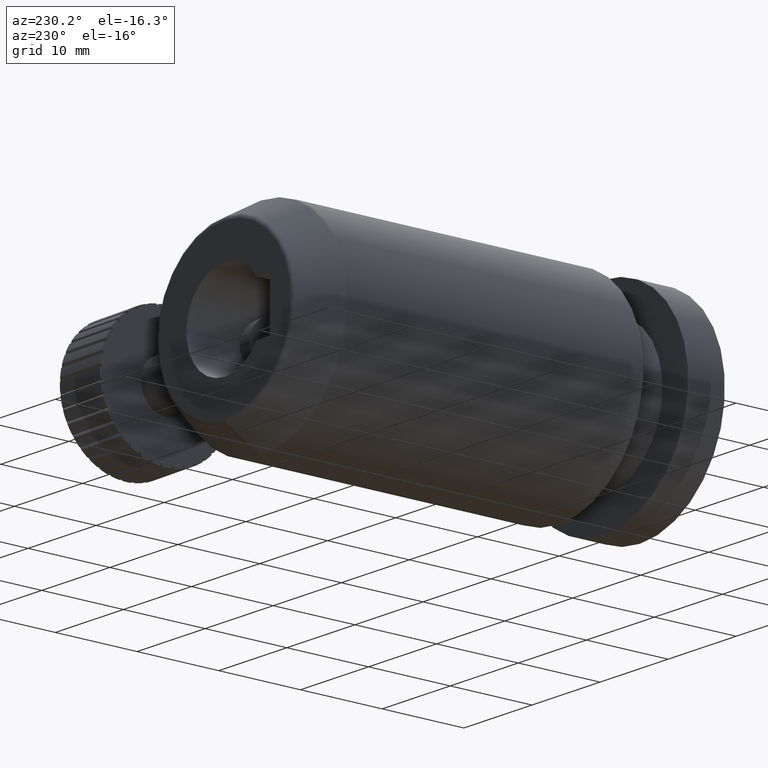
[diagram: clean part render]
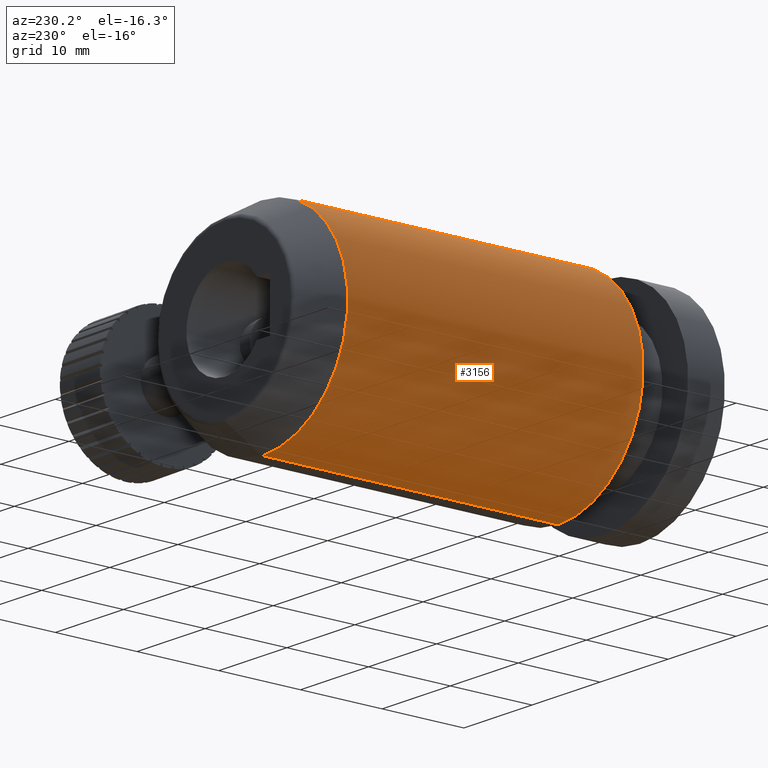
[diagram: same view with one face highlighted and labeled with its STEP entity id]
A machine part, auxiliary view. The second image highlights one B-rep face of the part: STEP entity #3156.
In plain terms, the highlighted cylindrical surface (partial cylindrical patch) has radius 12.5 mm, axis along (-0, -1, -0).
Its self-contained STEP definition (entity closure, byte-faithful):
#51 = AXIS2_PLACEMENT_3D ( 'NONE', #107, #974, #1034 ) ;
#107 = CARTESIAN_POINT ( 'NONE',  ( -5.265086014860968600, -21.01514838293971400, 2.000000000000000000 ) ) ;
#121 = ORIENTED_EDGE ( 'NONE', *, *, #1605, .T. ) ;
#850 = ORIENTED_EDGE ( 'NONE', *, *, #1925, .T. ) ;
#974 = DIRECTION ( 'NONE',  ( -0.0000000000000000000, -1.000000000000000000, -0.0000000000000000000 ) ) ;
#1025 = CARTESIAN_POINT ( 'NONE',  ( -5.265086014860968600, 30.68542805009477100, -10.50000000000008000 ) ) ;
#1034 = DIRECTION ( 'NONE',  ( 0.0000000000000000000, 0.0000000000000000000, -1.000000000000000000 ) ) ;
#1140 = VECTOR ( 'NONE', #2850, 1000.000000000000000 ) ;
#1236 = CARTESIAN_POINT ( 'NONE',  ( -5.265086014860968600, -5.485008935806528800, 2.000000000000000000 ) ) ;
#1272 = DIRECTION ( 'NONE',  ( -0.0000000000000000000, -1.000000000000000000, -0.0000000000000000000 ) ) ;
#1394 = EDGE_CURVE ( 'NONE', #1938, #1955, #3534, .T. ) ;
#1605 = EDGE_CURVE ( 'NONE', #1938, #3690, #2236, .T. ) ;
#1643 = CARTESIAN_POINT ( 'NONE',  ( -5.265086014860966800, -5.485008935806528800, 14.50000000000008000 ) ) ;
#1925 = EDGE_CURVE ( 'NONE', #3690, #3085, #2759, .T. ) ;
#1938 = VERTEX_POINT ( 'NONE', #5018 ) ;
#1953 = CARTESIAN_POINT ( 'NONE',  ( -5.265086014860968600, -21.01514838293971400, -10.50000000000008000 ) ) ;
#1955 = VERTEX_POINT ( 'NONE', #1643 ) ;
#2236 = CIRCLE ( 'NONE', #4875, 12.50000000000008000 ) ;
#2497 = ORIENTED_EDGE ( 'NONE', *, *, #1394, .F. ) ;
#2543 = CARTESIAN_POINT ( 'NONE',  ( -5.265086014860966800, -21.01514838293971400, 14.50000000000008000 ) ) ;
#2670 = CYLINDRICAL_SURFACE ( 'NONE', #51, 12.50000000000008000 ) ;
#2759 = LINE ( 'NONE', #1953, #1140 ) ;
#2850 = DIRECTION ( 'NONE',  ( -0.0000000000000000000, -1.000000000000000000, -0.0000000000000000000 ) ) ;
#3058 = DIRECTION ( 'NONE',  ( -0.0000000000000000000, -1.000000000000000000, -0.0000000000000000000 ) ) ;
#3085 = VERTEX_POINT ( 'NONE', #4005 ) ;
#3156 = ADVANCED_FACE ( 'NONE', ( #4261 ), #2670, .T. ) ;
#3534 = LINE ( 'NONE', #2543, #5401 ) ;
#3690 = VERTEX_POINT ( 'NONE', #1025 ) ;
#3748 = CIRCLE ( 'NONE', #5607, 12.50000000000008000 ) ;
#4005 = CARTESIAN_POINT ( 'NONE',  ( -5.265086014860968600, -5.485008935806528800, -10.50000000000008000 ) ) ;
#4153 = DIRECTION ( 'NONE',  ( 0.0000000000000000000, 0.0000000000000000000, -1.000000000000000000 ) ) ;
#4261 = FACE_OUTER_BOUND ( 'NONE', #5079, .T. ) ;
#4291 = DIRECTION ( 'NONE',  ( 0.0000000000000000000, 0.0000000000000000000, -1.000000000000000000 ) ) ;
#4316 = ORIENTED_EDGE ( 'NONE', *, *, #4651, .F. ) ;
#4558 = CARTESIAN_POINT ( 'NONE',  ( -5.265086014860968600, 30.68542805009477100, 2.000000000000000000 ) ) ;
#4651 = EDGE_CURVE ( 'NONE', #1955, #3085, #3748, .T. ) ;
#4875 = AXIS2_PLACEMENT_3D ( 'NONE', #4558, #5007, #4153 ) ;
#5007 = DIRECTION ( 'NONE',  ( -0.0000000000000000000, -1.000000000000000000, -0.0000000000000000000 ) ) ;
#5018 = CARTESIAN_POINT ( 'NONE',  ( -5.265086014860966800, 30.68542805009477100, 14.50000000000008000 ) ) ;
#5079 = EDGE_LOOP ( 'NONE', ( #2497, #121, #850, #4316 ) ) ;
#5401 = VECTOR ( 'NONE', #3058, 1000.000000000000000 ) ;
#5607 = AXIS2_PLACEMENT_3D ( 'NONE', #1236, #1272, #4291 ) ;